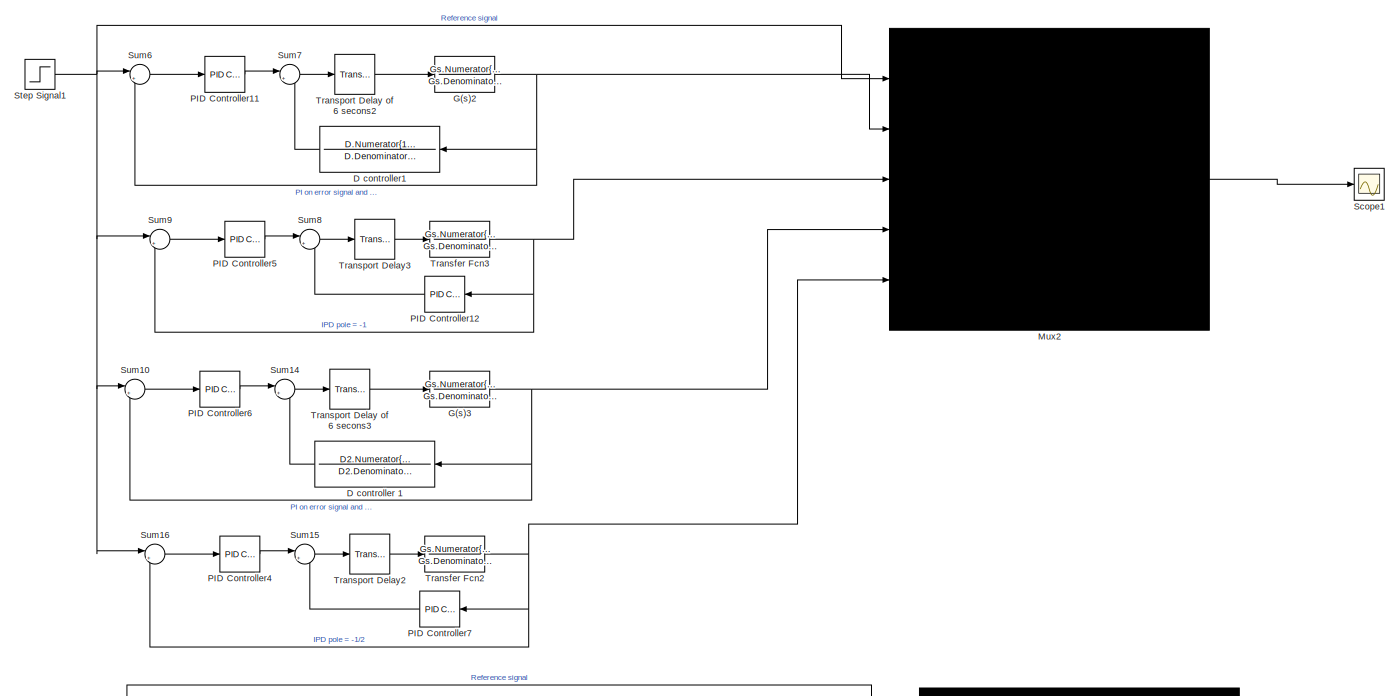
[diagram: root canvas - part 1/3, full width, top band]
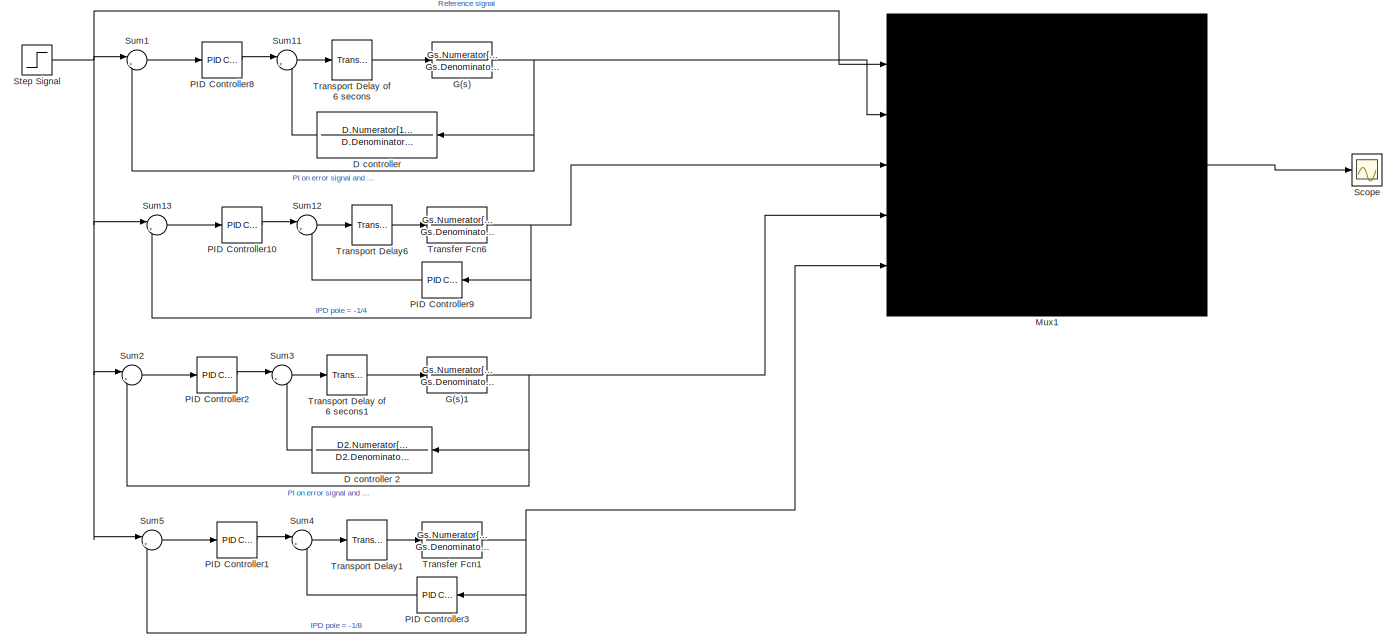
[diagram: root canvas - part 2/3, full width, middle band]
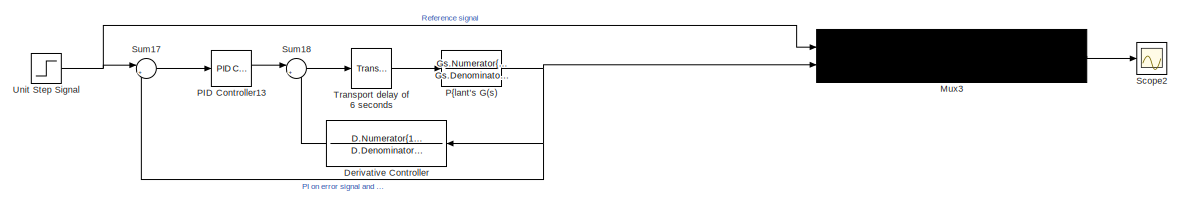
[diagram: root canvas - part 3/3, full width, bottom band]
MODEL slx_890b5fef43cb
KIND model
CONFIG AbsTol = auto
CONFIG EnableMultiTasking = off
CONFIG FixedStep = auto
CONFIG MaxStep = auto
CONFIG MinStep = auto
CONFIG RelTol = 1e-3
CONFIG SampleTimeConstraint = Unconstrained
CONFIG Solver = VariableStepAuto
CONFIG SolverName = VariableStepAuto
CONFIG StartTime = 0.0
CONFIG StopTime = time
BLOCK [TransferFcn] D controller
  Denominator = D.Denominator{1,1}
  Numerator = D.Numerator{1,1}
BLOCK [TransferFcn] D controller 1
  Denominator = D2.Denominator{1,1}
  Numerator = D2.Numerator{1,1}
BLOCK [TransferFcn] D controller 2
  Denominator = D2.Denominator{1,1}
  Numerator = D2.Numerator{1,1}
BLOCK [TransferFcn] D controller1
  Denominator = D.Denominator{1,1}
  Numerator = D.Numerator{1,1}
BLOCK [TransferFcn] Derivative Controller
  Denominator = D.Denominator{1,1}
  Numerator = D.Numerator{1,1}
BLOCK [TransferFcn] G(s)
  Denominator = Gs.Denominator{1,1}
  Numerator = Gs.Numerator{1,1}
BLOCK [TransferFcn] G(s)1
  Denominator = Gs.Denominator{1,1}
  Numerator = Gs.Numerator{1,1}
BLOCK [TransferFcn] G(s)2
  Denominator = Gs.Denominator{1,1}
  Numerator = Gs.Numerator{1,1}
BLOCK [TransferFcn] G(s)3
  Denominator = Gs.Denominator{1,1}
  Numerator = Gs.Numerator{1,1}
BLOCK [Mux] Mux1
  DisplayOption = signals
  Inputs = 5
  Ports = [5, 1]
BLOCK [Mux] Mux2
  DisplayOption = signals
  Inputs = 5
  Ports = [5, 1]
BLOCK [Mux] Mux3
  DisplayOption = signals
  Inputs = 2
  Ports = [2, 1]
BLOCK [Reference] PID Controller1  REF=simulink/Continuous/PID Controller
  Ports = [1, 1]
  SourceBlock = simulink/Continuous/PID Controller
  SourceProductBaseCode = SL
  SourceProductName = Simulink
  SourceType = PID 1dof
BLOCK [Reference] PID Controller10  REF=simulink/Continuous/PID Controller
  Ports = [1, 1]
  SourceBlock = simulink/Continuous/PID Controller
  SourceProductBaseCode = SL
  SourceProductName = Simulink
  SourceType = PID 1dof
BLOCK [Reference] PID Controller11  REF=simulink/Continuous/PID Controller
  Ports = [1, 1]
  SourceBlock = simulink/Continuous/PID Controller
  SourceProductBaseCode = SL
  SourceProductName = Simulink
  SourceType = PID 1dof
BLOCK [Reference] PID Controller12  REF=simulink/Continuous/PID Controller
  Ports = [1, 1]
  SourceBlock = simulink/Continuous/PID Controller
  SourceProductBaseCode = SL
  SourceProductName = Simulink
  SourceType = PID 1dof
BLOCK [Reference] PID Controller13  REF=simulink/Continuous/PID Controller
  Ports = [1, 1]
  SourceBlock = simulink/Continuous/PID Controller
  SourceProductBaseCode = SL
  SourceProductName = Simulink
  SourceType = PID 1dof
BLOCK [Reference] PID Controller2  REF=simulink/Continuous/PID Controller
  Ports = [1, 1]
  SourceBlock = simulink/Continuous/PID Controller
  SourceProductBaseCode = SL
  SourceProductName = Simulink
  SourceType = PID 1dof
BLOCK [Reference] PID Controller3  REF=simulink/Continuous/PID Controller
  Ports = [1, 1]
  SourceBlock = simulink/Continuous/PID Controller
  SourceProductBaseCode = SL
  SourceProductName = Simulink
  SourceType = PID 1dof
BLOCK [Reference] PID Controller4  REF=simulink/Continuous/PID Controller
  Ports = [1, 1]
  SourceBlock = simulink/Continuous/PID Controller
  SourceProductBaseCode = SL
  SourceProductName = Simulink
  SourceType = PID 1dof
BLOCK [Reference] PID Controller5  REF=simulink/Continuous/PID Controller
  Ports = [1, 1]
  SourceBlock = simulink/Continuous/PID Controller
  SourceProductBaseCode = SL
  SourceProductName = Simulink
  SourceType = PID 1dof
BLOCK [Reference] PID Controller6  REF=simulink/Continuous/PID Controller
  Ports = [1, 1]
  SourceBlock = simulink/Continuous/PID Controller
  SourceProductBaseCode = SL
  SourceProductName = Simulink
  SourceType = PID 1dof
BLOCK [Reference] PID Controller7  REF=simulink/Continuous/PID Controller
  Ports = [1, 1]
  SourceBlock = simulink/Continuous/PID Controller
  SourceProductBaseCode = SL
  SourceProductName = Simulink
  SourceType = PID 1dof
BLOCK [Reference] PID Controller8  REF=simulink/Continuous/PID Controller
  Ports = [1, 1]
  SourceBlock = simulink/Continuous/PID Controller
  SourceProductBaseCode = SL
  SourceProductName = Simulink
  SourceType = PID 1dof
BLOCK [Reference] PID Controller9  REF=simulink/Continuous/PID Controller
  Ports = [1, 1]
  SourceBlock = simulink/Continuous/PID Controller
  SourceProductBaseCode = SL
  SourceProductName = Simulink
  SourceType = PID 1dof
BLOCK [TransferFcn] P{lant's G(s)
  Denominator = Gs.Denominator{1,1}
  Numerator = Gs.Numerator{1,1}
BLOCK [Scope] Scope
  Floating = off
  NumInputPorts = 1
  Ports = [1]
  ScopeSpecificationString = Simulink.scopes.TimeScopeBlockCfg('CurrentConfiguration', extmgr.ConfigurationSet(extmgr.Configuration('Core','General UI',true),extmgr.Configuration('Core','Source UI',true),extmgr.Configuration('Sources','WiredSimulink',true,'DataLoggingVariableName','ScopeData1'),extmgr.Configuration('Visuals','Time Domain',true,'SerializedDisplays',{struct('MinYLimReal','-0.125','MaxYLimReal','1.12502','YLabel...<+1582ch>
BLOCK [Scope] Scope1
  Floating = off
  NumInputPorts = 1
  Ports = [1]
  ScopeSpecificationString = Simulink.scopes.TimeScopeBlockCfg('CurrentConfiguration', extmgr.ConfigurationSet(extmgr.Configuration('Core','General UI',true),extmgr.Configuration('Core','Source UI',true),extmgr.Configuration('Sources','WiredSimulink',true,'DataLoggingVariableName','ScopeData1'),extmgr.Configuration('Visuals','Time Domain',true,'SerializedDisplays',{struct('MinYLimReal','-0.125','MaxYLimReal','1.12502','YLabel...<+1578ch>
BLOCK [Scope] Scope2
  Floating = off
  NumInputPorts = 1
  Ports = [1]
  ScopeSpecificationString = Simulink.scopes.TimeScopeBlockCfg('CurrentConfiguration', extmgr.ConfigurationSet(extmgr.Configuration('Core','General UI',true),extmgr.Configuration('Core','Source UI',true),extmgr.Configuration('Sources','WiredSimulink',true,'DataLoggingVariableName','ScopeData2'),extmgr.Configuration('Visuals','Time Domain',true,'SerializedDisplays',{struct('MinYLimReal','-0.125','MaxYLimReal','1.125','YLabelRe...<+1477ch>
BLOCK [Step] Step Signal
  SampleTime = 0.001
  Time = 0
BLOCK [Step] Step Signal1
  SampleTime = 0.001
  Time = 0
BLOCK [Sum] Sum1
  IconShape = round
  InputSameDT = off
  Inputs = |+-
  OutDataTypeStr = Inherit: Inherit via internal rule
  Ports = [2, 1]
  SaturateOnIntegerOverflow = off
BLOCK [Sum] Sum10
  IconShape = round
  InputSameDT = off
  Inputs = |+-
  OutDataTypeStr = Inherit: Inherit via internal rule
  Ports = [2, 1]
  SaturateOnIntegerOverflow = off
BLOCK [Sum] Sum11
  IconShape = round
  InputSameDT = off
  Inputs = |+-
  OutDataTypeStr = Inherit: Inherit via internal rule
  Ports = [2, 1]
  SaturateOnIntegerOverflow = off
BLOCK [Sum] Sum12
  IconShape = round
  InputSameDT = off
  Inputs = |+-
  OutDataTypeStr = Inherit: Inherit via internal rule
  Ports = [2, 1]
  SaturateOnIntegerOverflow = off
BLOCK [Sum] Sum13
  IconShape = round
  InputSameDT = off
  Inputs = |+-
  OutDataTypeStr = Inherit: Inherit via internal rule
  Ports = [2, 1]
  SaturateOnIntegerOverflow = off
BLOCK [Sum] Sum14
  IconShape = round
  InputSameDT = off
  Inputs = |+-
  OutDataTypeStr = Inherit: Inherit via internal rule
  Ports = [2, 1]
  SaturateOnIntegerOverflow = off
BLOCK [Sum] Sum15
  IconShape = round
  InputSameDT = off
  Inputs = |+-
  OutDataTypeStr = Inherit: Inherit via internal rule
  Ports = [2, 1]
  SaturateOnIntegerOverflow = off
BLOCK [Sum] Sum16
  IconShape = round
  InputSameDT = off
  Inputs = |+-
  OutDataTypeStr = Inherit: Inherit via internal rule
  Ports = [2, 1]
  SaturateOnIntegerOverflow = off
BLOCK [Sum] Sum17
  IconShape = round
  InputSameDT = off
  Inputs = |+-
  OutDataTypeStr = Inherit: Inherit via internal rule
  Ports = [2, 1]
  SaturateOnIntegerOverflow = off
BLOCK [Sum] Sum18
  IconShape = round
  InputSameDT = off
  Inputs = |+-
  OutDataTypeStr = Inherit: Inherit via internal rule
  Ports = [2, 1]
  SaturateOnIntegerOverflow = off
BLOCK [Sum] Sum2
  IconShape = round
  InputSameDT = off
  Inputs = |+-
  OutDataTypeStr = Inherit: Inherit via internal rule
  Ports = [2, 1]
  SaturateOnIntegerOverflow = off
BLOCK [Sum] Sum3
  IconShape = round
  InputSameDT = off
  Inputs = |+-
  OutDataTypeStr = Inherit: Inherit via internal rule
  Ports = [2, 1]
  SaturateOnIntegerOverflow = off
BLOCK [Sum] Sum4
  IconShape = round
  InputSameDT = off
  Inputs = |+-
  OutDataTypeStr = Inherit: Inherit via internal rule
  Ports = [2, 1]
  SaturateOnIntegerOverflow = off
BLOCK [Sum] Sum5
  IconShape = round
  InputSameDT = off
  Inputs = |+-
  OutDataTypeStr = Inherit: Inherit via internal rule
  Ports = [2, 1]
  SaturateOnIntegerOverflow = off
BLOCK [Sum] Sum6
  IconShape = round
  InputSameDT = off
  Inputs = |+-
  OutDataTypeStr = Inherit: Inherit via internal rule
  Ports = [2, 1]
  SaturateOnIntegerOverflow = off
BLOCK [Sum] Sum7
  IconShape = round
  InputSameDT = off
  Inputs = |+-
  OutDataTypeStr = Inherit: Inherit via internal rule
  Ports = [2, 1]
  SaturateOnIntegerOverflow = off
BLOCK [Sum] Sum8
  IconShape = round
  InputSameDT = off
  Inputs = |+-
  OutDataTypeStr = Inherit: Inherit via internal rule
  Ports = [2, 1]
  SaturateOnIntegerOverflow = off
BLOCK [Sum] Sum9
  IconShape = round
  InputSameDT = off
  Inputs = |+-
  OutDataTypeStr = Inherit: Inherit via internal rule
  Ports = [2, 1]
  SaturateOnIntegerOverflow = off
BLOCK [TransferFcn] Transfer Fcn1
  Denominator = Gs.Denominator{1,1}
  Numerator = Gs.Numerator{1,1}
BLOCK [TransferFcn] Transfer Fcn2
  Denominator = Gs.Denominator{1,1}
  Numerator = Gs.Numerator{1,1}
BLOCK [TransferFcn] Transfer Fcn3
  Denominator = Gs.Denominator{1,1}
  Numerator = Gs.Numerator{1,1}
BLOCK [TransferFcn] Transfer Fcn6
  Denominator = Gs.Denominator{1,1}
  Numerator = Gs.Numerator{1,1}
BLOCK [TransportDelay] Transport Delay of 6 secons
  DelayTime = 6
  Ports = [1, 1]
BLOCK [TransportDelay] Transport Delay of 6 secons1
  DelayTime = 6
  Ports = [1, 1]
BLOCK [TransportDelay] Transport Delay of 6 secons2
  DelayTime = 6
  Ports = [1, 1]
BLOCK [TransportDelay] Transport Delay of 6 secons3
  DelayTime = 6
  Ports = [1, 1]
BLOCK [TransportDelay] Transport Delay1
  DelayTime = 6
  Ports = [1, 1]
BLOCK [TransportDelay] Transport Delay2
  DelayTime = 6
  Ports = [1, 1]
BLOCK [TransportDelay] Transport Delay3
  DelayTime = 6
  Ports = [1, 1]
BLOCK [TransportDelay] Transport Delay6
  DelayTime = 6
  Ports = [1, 1]
BLOCK [TransportDelay] Transport delay of 6 seconds
  DelayTime = 6
  Ports = [1, 1]
BLOCK [Step] Unit Step Signal
  SampleTime = 0.001
  Time = 0
LINE D controller 1:1 -> Sum14:2
LINE D controller 2:1 -> Sum3:2
LINE D controller1:1 -> Sum7:2
LINE D controller:1 -> Sum11:2
LINE Derivative Controller:1 -> Sum18:2
NET G(s)1:1 -> D controller 2:1, Mux1:4, Sum2:2
NET G(s)2:1 -> D controller1:1, Mux2:2, Sum6:2
NET G(s)3:1 -> D controller 1:1, Mux2:4, Sum10:2
NET G(s):1 -> D controller:1, Mux1:2, Sum1:2
LINE Mux1:1 -> Scope:1
LINE Mux2:1 -> Scope1:1
LINE Mux3:1 -> Scope2:1
LINE PID Controller10:1 -> Sum12:1
LINE PID Controller11:1 -> Sum7:1
LINE PID Controller12:1 -> Sum8:2
LINE PID Controller13:1 -> Sum18:1
LINE PID Controller1:1 -> Sum4:1
LINE PID Controller2:1 -> Sum3:1
LINE PID Controller3:1 -> Sum4:2
LINE PID Controller4:1 -> Sum15:1
LINE PID Controller5:1 -> Sum8:1
LINE PID Controller6:1 -> Sum14:1
LINE PID Controller7:1 -> Sum15:2
LINE PID Controller8:1 -> Sum11:1
LINE PID Controller9:1 -> Sum12:2
NET P{lant's G(s):1 -> Derivative Controller:1, Mux3:2, Sum17:2
NET Step Signal1:1 -> Mux2:1, Sum10:1, Sum16:1, Sum6:1, Sum9:1
NET Step Signal:1 -> Mux1:1, Sum13:1, Sum1:1, Sum2:1, Sum5:1
LINE Sum10:1 -> PID Controller6:1
LINE Sum11:1 -> Transport Delay of 6 secons:1
LINE Sum12:1 -> Transport Delay6:1
LINE Sum13:1 -> PID Controller10:1
LINE Sum14:1 -> Transport Delay of 6 secons3:1
LINE Sum15:1 -> Transport Delay2:1
LINE Sum16:1 -> PID Controller4:1
LINE Sum17:1 -> PID Controller13:1
LINE Sum18:1 -> Transport delay of 6 seconds:1
LINE Sum1:1 -> PID Controller8:1
LINE Sum2:1 -> PID Controller2:1
LINE Sum3:1 -> Transport Delay of 6 secons1:1
LINE Sum4:1 -> Transport Delay1:1
LINE Sum5:1 -> PID Controller1:1
LINE Sum6:1 -> PID Controller11:1
LINE Sum7:1 -> Transport Delay of 6 secons2:1
LINE Sum8:1 -> Transport Delay3:1
LINE Sum9:1 -> PID Controller5:1
NET Transfer Fcn1:1 -> Mux1:5, PID Controller3:1, Sum5:2
NET Transfer Fcn2:1 -> Mux2:5, PID Controller7:1, Sum16:2
NET Transfer Fcn3:1 -> Mux2:3, PID Controller12:1, Sum9:2
NET Transfer Fcn6:1 -> Mux1:3, PID Controller9:1, Sum13:2
LINE Transport Delay of 6 secons1:1 -> G(s)1:1
LINE Transport Delay of 6 secons2:1 -> G(s)2:1
LINE Transport Delay of 6 secons3:1 -> G(s)3:1
LINE Transport Delay of 6 secons:1 -> G(s):1
LINE Transport Delay1:1 -> Transfer Fcn1:1
LINE Transport Delay2:1 -> Transfer Fcn2:1
LINE Transport Delay3:1 -> Transfer Fcn3:1
LINE Transport Delay6:1 -> Transfer Fcn6:1
LINE Transport delay of 6 seconds:1 -> P{lant's G(s):1
NET Unit Step Signal:1 -> Mux3:1, Sum17:1
note: NET lines group one-source signal fan-out (src -> all destinations, sorted); 1:1 wires keep LINE
